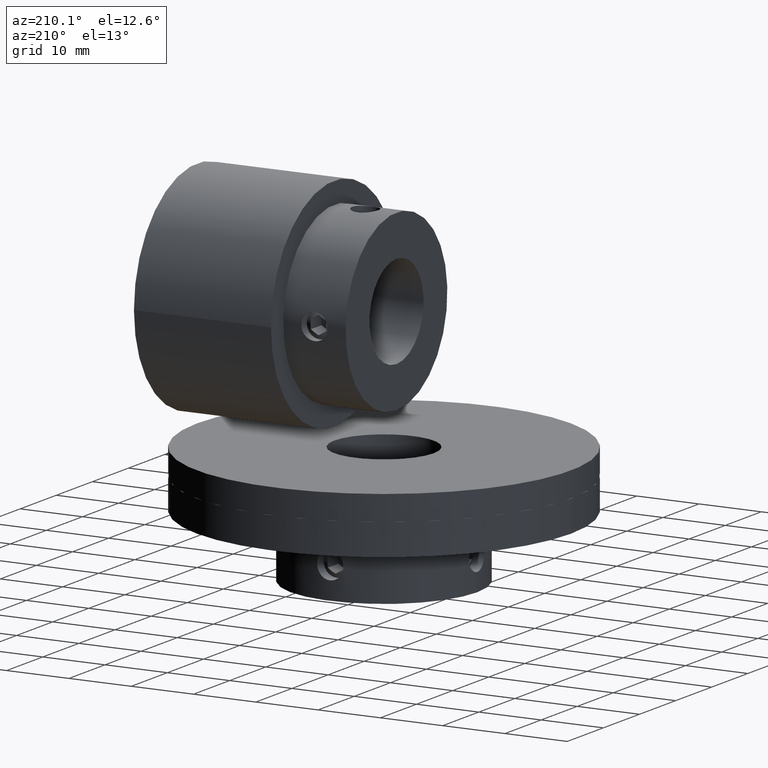
[diagram: clean part render]
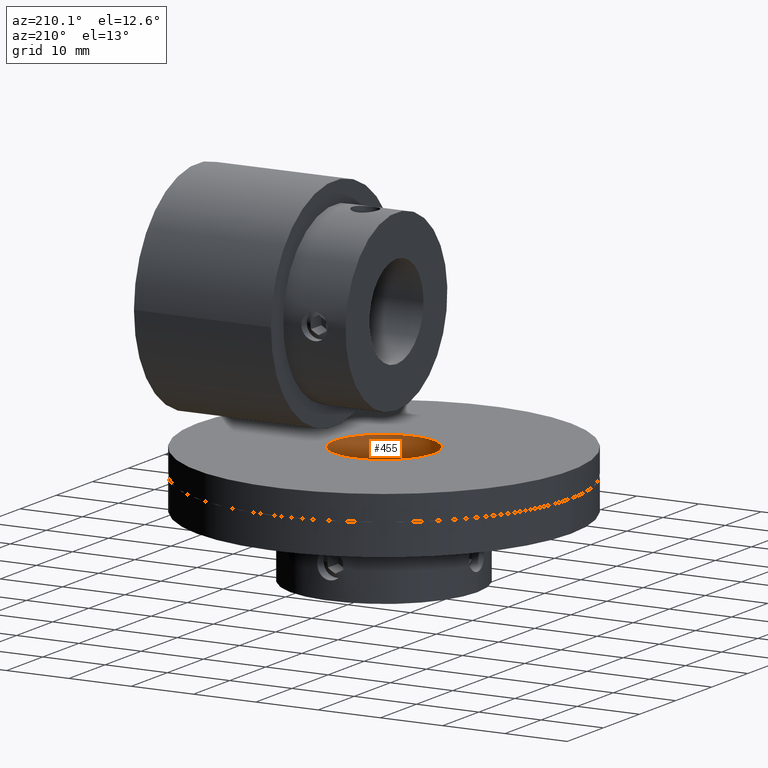
[diagram: same view with one face highlighted and labeled with its STEP entity id]
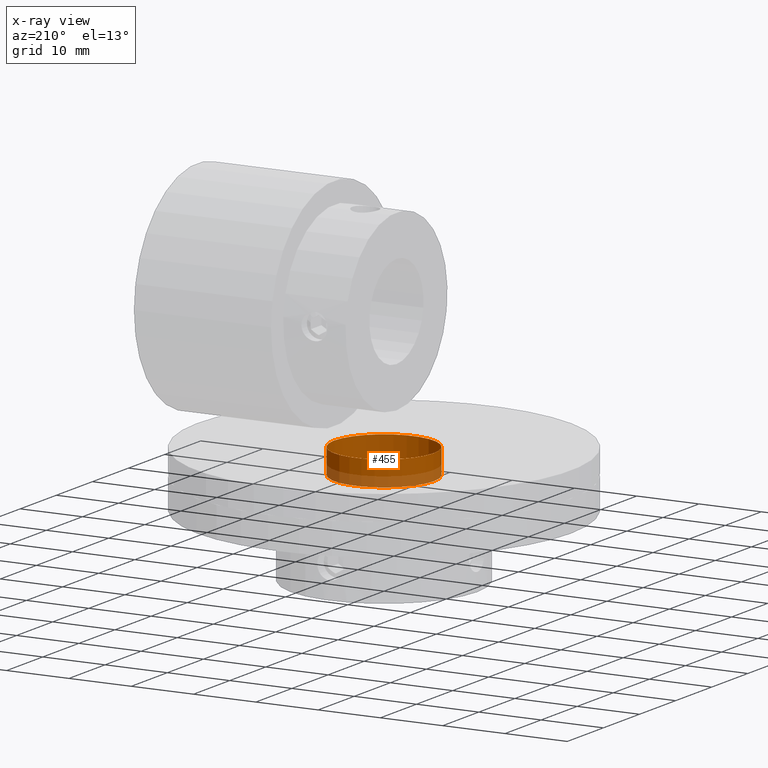
[diagram: x-ray of the same camera — body ghosted, the highlighted face saturated]
A machine part, auxiliary view. The second image highlights one B-rep face of the part: STEP entity #455.
The next image is the same camera in x-ray: the body ghosted, the highlighted face saturated — about 23% of this face is hidden behind the body in this view.
In plain terms, the highlighted cylindrical surface (bore or boss wall) has radius 8 mm, axis along (-0, 0, -1).
Its self-contained STEP definition (entity closure, byte-faithful):
#455 = ADVANCED_FACE( '', ( #540, #541 ), #542, .F. );
#540 = FACE_OUTER_BOUND( '', #724, .T. );
#541 = FACE_OUTER_BOUND( '', #725, .T. );
#542 = CYLINDRICAL_SURFACE( '', #726, 8.00000000000000 );
#724 = EDGE_LOOP( '', ( #912 ) );
#725 = EDGE_LOOP( '', ( #913 ) );
#726 = AXIS2_PLACEMENT_3D( '', #914, #915, #916 );
#912 = ORIENTED_EDGE( '', *, *, #1337, .F. );
#913 = ORIENTED_EDGE( '', *, *, #1336, .T. );
#914 = CARTESIAN_POINT( '', ( 0.000000000000000, 0.000000000000000, 22.5000000000000 ) );
#915 = DIRECTION( '', ( -0.000000000000000, 0.000000000000000, -1.00000000000000 ) );
#916 = DIRECTION( '', ( 1.00000000000000, 0.000000000000000, 0.000000000000000 ) );
#1336 = EDGE_CURVE( '', #1454, #1454, #1455, .T. );
#1337 = EDGE_CURVE( '', #1456, #1456, #1457, .T. );
#1454 = VERTEX_POINT( '', #1654 );
#1455 = CIRCLE( '', #1655, 8.00000000000000 );
#1456 = VERTEX_POINT( '', #1656 );
#1457 = CIRCLE( '', #1657, 8.00000000000000 );
#1654 = CARTESIAN_POINT( '', ( 8.00000000000000, 0.000000000000000, 26.5000000000000 ) );
#1655 = AXIS2_PLACEMENT_3D( '', #2472, #2473, #2474 );
#1656 = CARTESIAN_POINT( '', ( 8.00000000000000, 0.000000000000000, 22.5000000000000 ) );
#1657 = AXIS2_PLACEMENT_3D( '', #2475, #2476, #2477 );
#2472 = CARTESIAN_POINT( '', ( 0.000000000000000, 0.000000000000000, 26.5000000000000 ) );
#2473 = DIRECTION( '', ( 0.000000000000000, 0.000000000000000, 1.00000000000000 ) );
#2474 = DIRECTION( '', ( 1.00000000000000, 0.000000000000000, 0.000000000000000 ) );
#2475 = CARTESIAN_POINT( '', ( 0.000000000000000, 0.000000000000000, 22.5000000000000 ) );
#2476 = DIRECTION( '', ( 0.000000000000000, 0.000000000000000, 1.00000000000000 ) );
#2477 = DIRECTION( '', ( 1.00000000000000, 0.000000000000000, 0.000000000000000 ) );